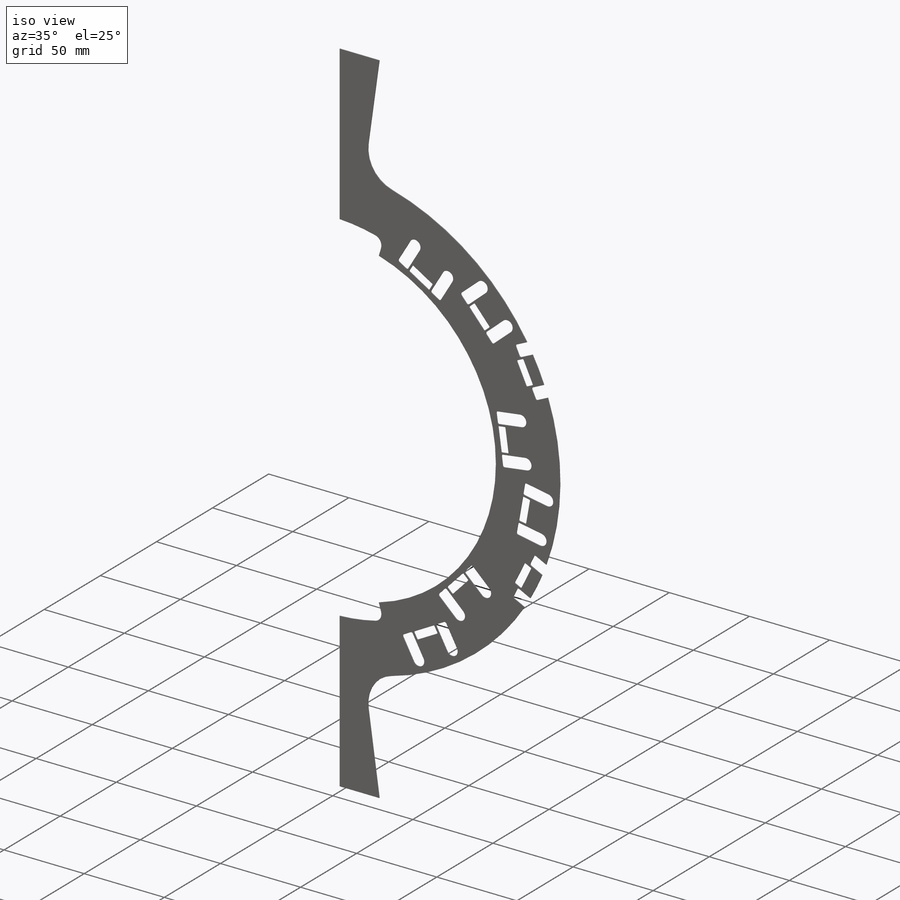
[diagram: iso view]
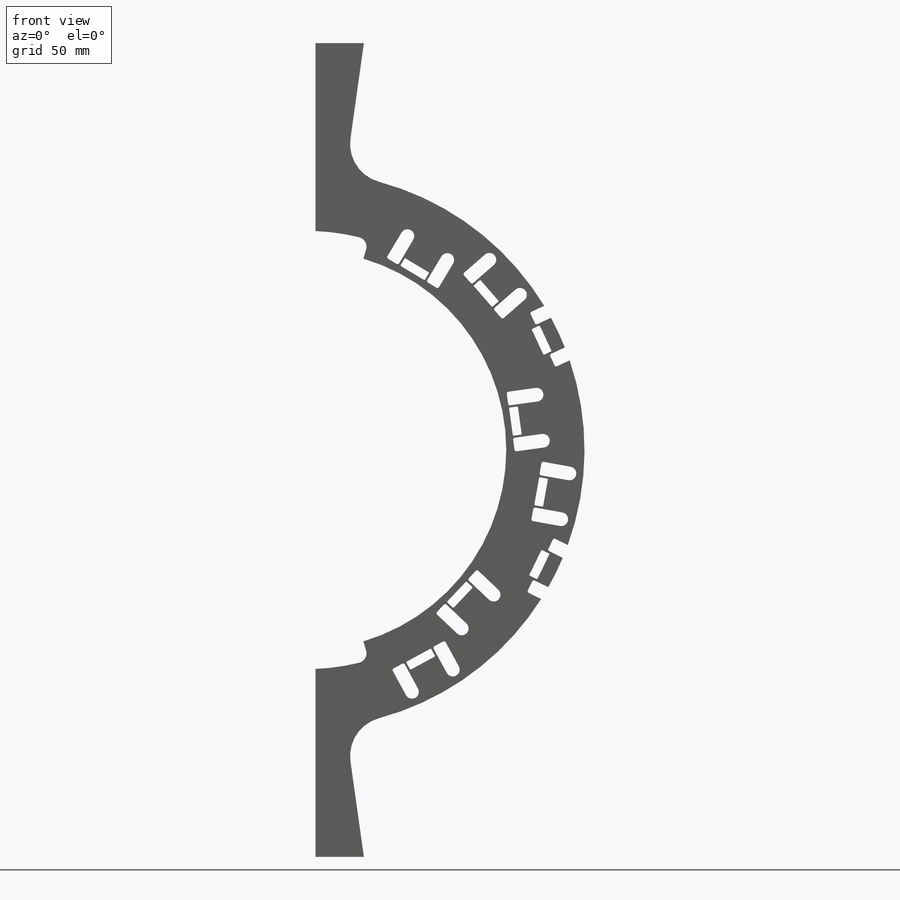
[diagram: front view]
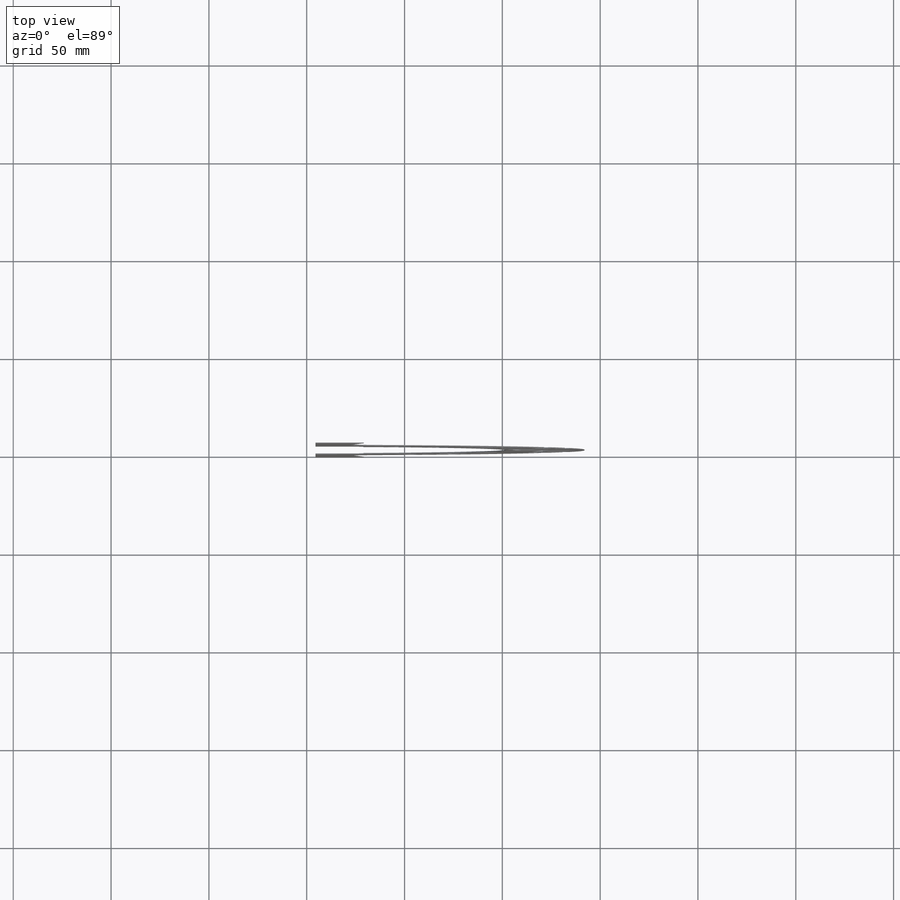
[diagram: top view]
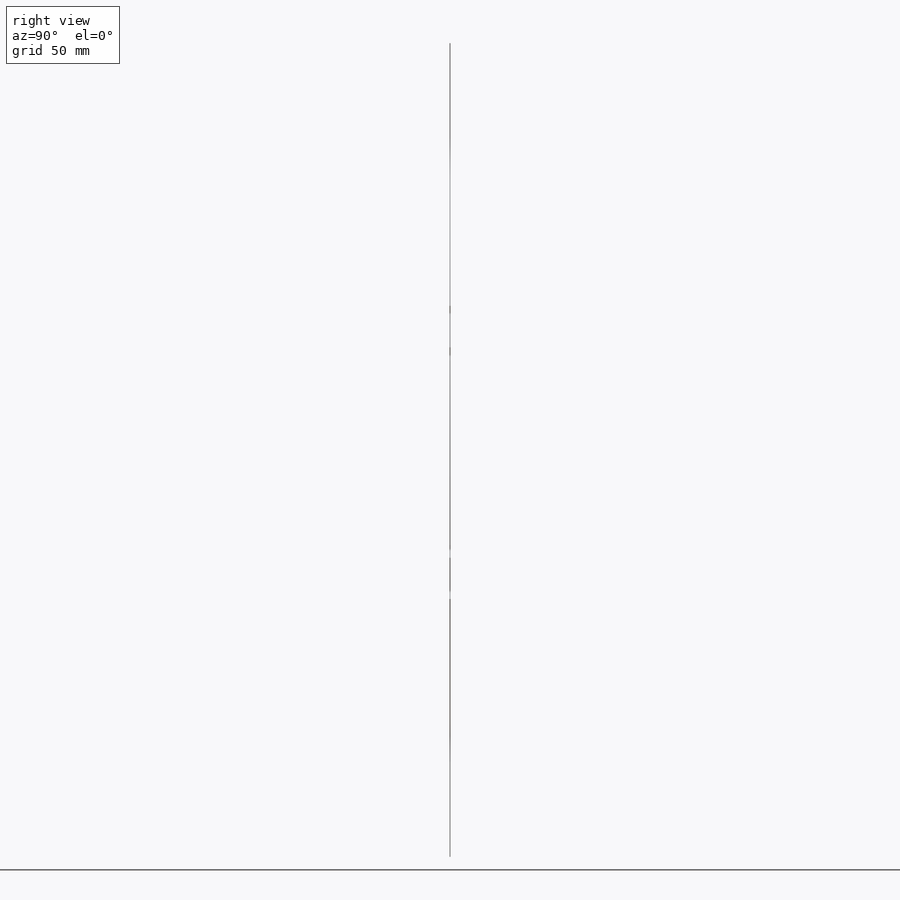
[diagram: right view]
SOLIDWORKS PART (.sldprt)
format: sldprt  version: not decoded by parser v0  size: 3,639,296 bytes
history: native  units: mm
features: sketch x15, cut_extrude x11, pattern_circular x10, extrude x4, plane x3, fillet x3, material x1 + 2 further entries (+13 scaffold rows collapsed)
feature tree (62):
  scaffold x13  (default folders/planes/origin — collapsed)
  material  "Material <not specified>"
  plane  "Plane1"
  plane  "Plane2"
  plane  "Plane3"
  "Axis2"
  "Axis3"
  sketch  "Sketch1"  dims[c1.D2=142.0mm c1.D4=20.0mm c1.D1=~111.962081mm c1.D8=135.0mm c1.D9=20.0mm c2.D1=~111.962081mm c3.D1=~37.196176mm c4.D1=60.0deg c4.D3=~24.375851mm c5.D3=60.0deg c5.D5=12.0mm c5.D6=416.0mm c5.D7=~104.61094mm c5.D8=~102.879192mm c5.D1=~97.413211mm c6.D1=60.0deg c6.D5=~56.199904mm c7.D5=8.0deg c7.D3=~43.780116mm c8.D3=60.0deg c8.D7=~67.933915mm c9.D7=8.0deg c9.D8=105.0mm c9.D9=~110.925113mm c10.D9=~68.856724deg c11.D9=~42.845414mm c12.D9=~68.856724deg c12.D8=110.0mm c13.D9=~140.525114mm c14.D9=~69.874197deg c14.D3=4.5mm c14.D10=~12.637277mm c15.D10=8.0deg]
  extrude  "Extrude1"  Depth=0.41mm
  sketch  "Sketch2"  dims[c1.D3=102.0mm c1.D1=0.4807mm c2.D1=~31.748965deg c2.D2=10.0mm c2.D3=20.0mm c2.D4=99.2mm c3.D2=45.0mm c3.D3=99.2mm c4.D2=45.0mm c4.D4=~10.735544mm c5.D4=90.0deg c6.D4=40.0mm c6.D2=~12.917065mm c7.D2=~116.084476deg c8.D2=~29.276035mm c8.D1=~12.859324mm c9.D1=~14.416843deg c9.D2=~57.706152mm c10.D1=0.4807mm c11.D1=16.5deg]
  extrude  "Extrude2"  [1 undecoded]
  fillet  "Fillet3"  Radius=5mm
  sketch  "Sketch5"  dims[c1.D5=3.5mm c1.D3=5.0mm c1.D1=0.4807mm c2.D1=~30.851123deg c2.D2=~107.581999mm c2.D3=35.0mm c2.D4=2.5mm c3.D2=~110.957975mm c3.D3=15.0mm c3.D4=23.75mm c4.D2=2.425mm c4.D6=~107.678405mm]
  cut_extrude  "Mouse Hole Cut-Extrude4"  [1 undecoded]
  sketch  "Sketch3"  dims[c1.D6=5.0mm c1.D1=5.0mm c1.D5=3.5mm c1.D7=5.0mm c1.D8=5.0mm c2.D1=35.0mm c2.D2=~24.642063mm c3.D2=~17.711442deg c3.D3=121.0mm c3.D4=2.5mm c3.D5=10.0mm c3.D6=~36.354045mm c4.D6=~15.887169deg c4.D7=122.0mm c4.D8=~131.673325mm c4.D3=~119.67089mm c4.D1=~123.046866mm c5.D3=~135.049301mm c5.D4=10.0mm c5.D7=15.0mm c5.D8=15.0mm c5.D2=~147.519949mm c6.D2=~17.711442deg c6.D1=23.75mm c6.D4=130.625mm c6.D3=~143.069601mm c7.D2=~80.652548mm c8.D2=~48.894184deg c8.D6=~80.652548mm c9.D6=~64.950828deg c9.D9=2.425mm c9.D10=2.425mm c9.D3=~121.731939mm c9.D4=~135.523075mm]
  cut_extrude  "Mouse Hole Cut-Extrude1"  [1 undecoded]
  fillet  "Fillet4"  Radius=1mm
  sketch  "Sketch4"  dims[c1.D6=5.0mm c1.D1=37.0mm c1.D2=~24.642063mm c2.D2=~17.711442deg c2.D3=121.0mm c2.D4=2.5mm c2.D5=10.0mm c2.D6=~36.354045mm c3.D6=~15.887169deg c3.D7=122.0mm c3.D8=131.5mm c3.D3=119.5mm]
  cut_extrude  "Mouse Hole Cut-Extrude3"  [1 undecoded]
  fillet  "Fillet2"  Radius=1mm
  sketch  "Sketch6"  dims[c1.D5=0.5mm c1.D1=14.5mm c1.D2=4.584mm c1.D3=~101.718168mm c1.D4=23.0mm c1.D6=0.4807mm c2.D6=~30.851123deg c2.D7=~101.718168mm c2.D3=~107.678405mm]
  cut_extrude  "Ladder Mount Hole Extrude7"  [1 undecoded]
  sketch  "Sketch7"  dims[c1.D3=0.5mm c1.D1=14.5mm c1.D2=4.584mm c1.D4=~113.807059mm c1.D5=23.0mm c1.D6=0.4807mm c2.D6=~48.894184deg c2.D4=~121.731939mm]
  cut_extrude  "Ladder Mount Hole Extrude8"  [1 undecoded]
  sketch  "Sketch8"  dims[c1.D3=0.5mm c1.D1=4.584mm c1.D2=14.5mm c1.D4=0.4807mm c2.D4=~64.950828deg c2.D5=~125.809494mm c2.D6=23.0mm c3.D5=~132.558601mm]
  cut_extrude  "Ladder Mount Hole Extrude11"  [1 undecoded]
  pattern_circular  "Ladder Mount Hole CirPattern1"  Count=3 Angle=51.263149deg
  pattern_circular  "Ladder Mount Hole CirPattern2"  Count=2 Angle=51.263149deg
  pattern_circular  "Mouse Hole CirPattern3"  Count=3 Angle=51.263149deg
  pattern_circular  "Mouse Hole CirPattern4"  Count=2 Angle=51.263149deg
  sketch  "SlotSke"  dims[c1.Length=60.0mm c1.D2=10.0mm c1.D3=55.0mm c1.D4=40.0mm c1.Width=3.0mm c2.Length=70.0mm c3.Length=32.0mm c3.Locating dim1=7.25mm c3.Locating dim2=2.25mm c3.D1=4.7mm]
  cut_extrude  "Slot"  [1 undecoded]
  sketch  "SlotSke1"  dims[c1.Length=60.0mm c1.D2=10.0mm c1.D3=55.0mm c1.D4=40.0mm c1.Width=3.0mm c2.Length=70.0mm c3.Length=32.0mm c3.Locating dim1=7.25mm c3.Locating dim2=2.25mm c3.D1=4.7mm]
  cut_extrude  "Slot1"  [1 undecoded]
  pattern_circular  "Cable Slot CirPattern5"  Count=3 Angle=51.263149deg
  sketch  "SlotSke2"  dims[c1.Length=60.0mm c1.D2=10.0mm c1.D3=55.0mm c1.D4=40.0mm c1.Width=3.0mm c2.Length=70.0mm c3.Length=32.0mm c3.Locating dim1=7.25mm c3.Locating dim2=2.25mm c3.D1=4.7mm]
  cut_extrude  "Slot2"  [1 undecoded]
  pattern_circular  "Cable Slot CirPattern6"  Count=2 Angle=51.263149deg
  sketch  "Sketch9"  dims[D2=3.0mm D3=3.5mm D1=10.0mm]
  extrude  "Extrude3"  [1 undecoded]
  pattern_circular  "CirPattern1"  Count=3 Angle=51.263149deg
  sketch  "Sketch10"
  extrude  "Extrude4"  [1 undecoded]
  pattern_circular  "CirPattern2"  Count=2 Angle=51.263149deg
  sketch  "Sketch11"
  cut_extrude  "Extrude5"  [1 undecoded]
  pattern_circular  "CirPattern3"  Count=3 Angle=51.263149deg
  sketch  "Sketch12"
  cut_extrude  "Extrude6"  [1 undecoded]
  pattern_circular  "CirPattern4"  Count=2 Angle=51.263149deg
decode coverage: 26 of 43 modeling features carry decoded parameters; 2 rows unclassified (native names shown)
note: ~ marks probable driven/reference dimensions
note: 14 parameter values undecoded
summary: no parameter record found for 14 features
note: suppression state not decoded; provenance and decode notes live in map.json
